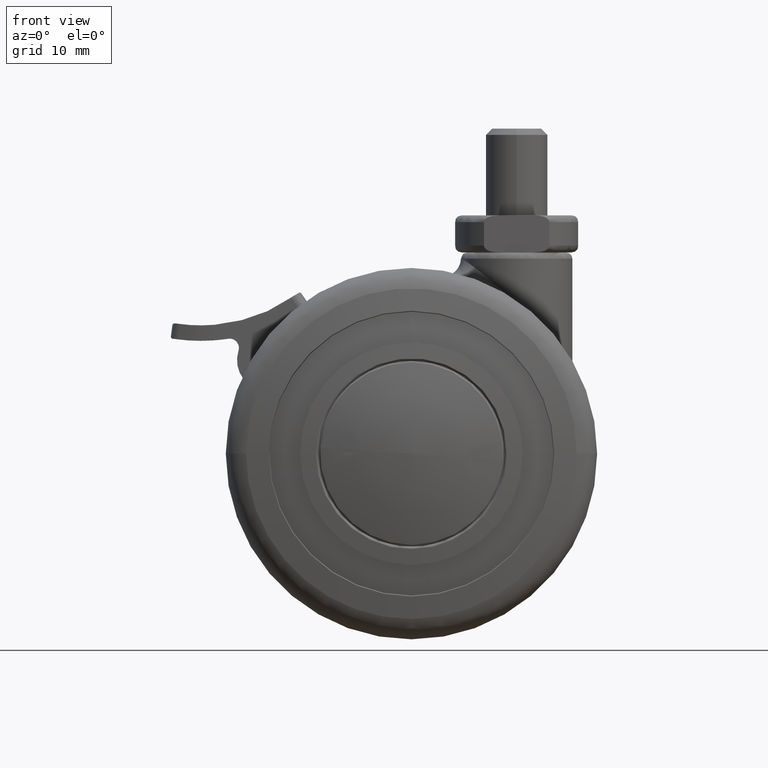
[diagram: clean part render]
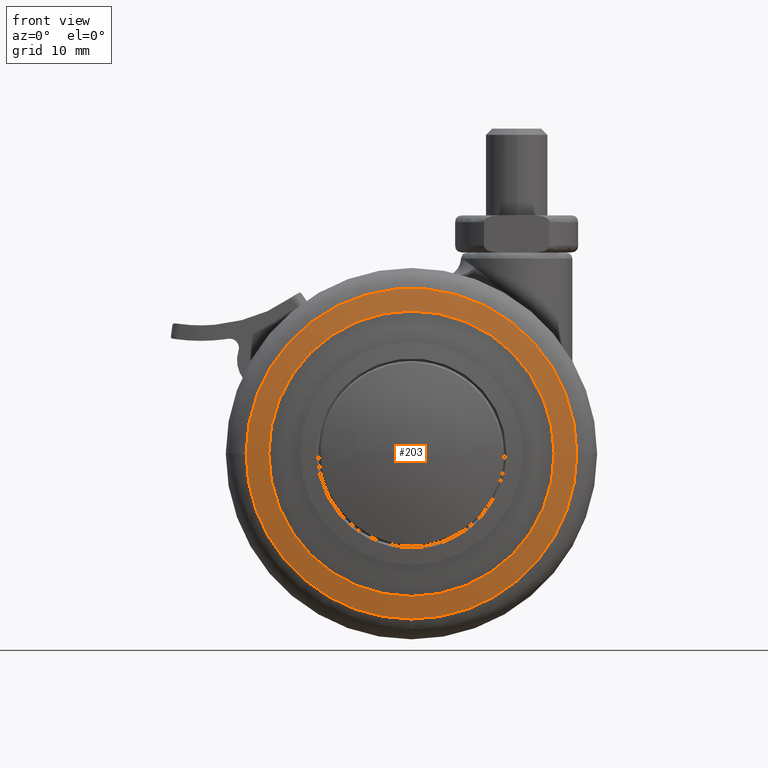
[diagram: same view with one face highlighted and labeled with its STEP entity id]
A machine part, front view. The second image highlights one B-rep face of the part: STEP entity #203.
In plain terms, the highlighted spherical surface has radius 150 mm.
Its self-contained STEP definition (entity closure, byte-faithful):
#203=ADVANCED_FACE('',(#501,#502),#500,.T.);
#500=SPHERICAL_SURFACE('',#3095,1.50000000000E+02);
#501=FACE_OUTER_BOUND('',#3096,.T.);
#502=FACE_BOUND('',#3097,.T.);
#3092=CARTESIAN_POINT('',(0.00000000000E+00,0.00000000000E+00,-1.35210000000E+02));
#3093=DIRECTION('',(-1.00000000000E+00,0.00000000000E+00,0.00000000000E+00));
#3094=DIRECTION('',(-0.00000000000E+00,-1.78082191781E-01,9.84015616223E-01));
#3095=AXIS2_PLACEMENT_3D('',#3092,#3093,#3094);
#3096=EDGE_LOOP('',(#5826,#5827,#5828));
#3097=EDGE_LOOP('',(#5829,#5830,#5831));
#5826=ORIENTED_EDGE('',*,*,#6967,.T.);
#5827=ORIENTED_EDGE('',*,*,#6968,.T.);
#5828=ORIENTED_EDGE('',*,*,#6969,.T.);
#5829=ORIENTED_EDGE('',*,*,#6970,.F.);
#5830=ORIENTED_EDGE('',*,*,#6971,.F.);
#5831=ORIENTED_EDGE('',*,*,#6972,.F.);
#6967=EDGE_CURVE('',#7723,#7724,#7725,.T.);
#6968=EDGE_CURVE('',#7724,#7731,#7732,.T.);
#6969=EDGE_CURVE('',#7731,#7723,#7738,.T.);
#6970=EDGE_CURVE('',#7744,#7745,#7746,.T.);
#6971=EDGE_CURVE('',#7752,#7744,#7753,.T.);
#6972=EDGE_CURVE('',#7745,#7752,#7759,.T.);
#7723=VERTEX_POINT('',#11478);
#7724=VERTEX_POINT('',#11479);
#7725=CIRCLE('',#11483,2.67123287671E+01);
#7731=VERTEX_POINT('',#11484);
#7732=CIRCLE('',#11488,2.67123287671E+01);
#7738=CIRCLE('',#11492,2.67123287671E+01);
#7744=VERTEX_POINT('',#11493);
#7745=VERTEX_POINT('',#11494);
#7746=CIRCLE('',#11498,2.30600000000E+01);
#7752=VERTEX_POINT('',#11499);
#7753=CIRCLE('',#11503,2.30600000000E+01);
#7759=CIRCLE('',#11507,2.30600000000E+01);
#11478=CARTESIAN_POINT('',(-1.43418453520E-15,-2.67123287671E+01,1.23923424334E+01));
#11479=CARTESIAN_POINT('',(2.67123287671E+01,-6.83950822632E-10,1.23923424334E+01));
#11480=CARTESIAN_POINT('',(0.00000000000E+00,0.00000000000E+00,1.23923424334E+01));
#11481=DIRECTION('',(-0.00000000000E+00,0.00000000000E+00,1.00000000000E+00));
#11482=DIRECTION('',(3.13691920983E-16,-1.00000000000E+00,0.00000000000E+00));
#11483=AXIS2_PLACEMENT_3D('',#11480,#11481,#11482);
#11484=CARTESIAN_POINT('',(-2.67123286233E+01,2.77215065779E-03,1.23923424334E+01));
#11485=CARTESIAN_POINT('',(0.00000000000E+00,0.00000000000E+00,1.23923424334E+01));
#11486=DIRECTION('',(-0.00000000000E+00,0.00000000000E+00,1.00000000000E+00));
#11487=DIRECTION('',(3.13691920983E-16,-1.00000000000E+00,0.00000000000E+00));
#11488=AXIS2_PLACEMENT_3D('',#11485,#11486,#11487);
#11489=CARTESIAN_POINT('',(0.00000000000E+00,0.00000000000E+00,1.23923424334E+01));
#11490=DIRECTION('',(-0.00000000000E+00,0.00000000000E+00,1.00000000000E+00));
#11491=DIRECTION('',(3.13691920983E-16,-1.00000000000E+00,0.00000000000E+00));
#11492=AXIS2_PLACEMENT_3D('',#11489,#11490,#11491);
#11493=CARTESIAN_POINT('',(2.30599998758E+01,-2.39318611887E-03,1.30068559915E+01));
#11494=CARTESIAN_POINT('',(7.05994889671E-15,2.30600000000E+01,1.30068559915E+01));
#11495=CARTESIAN_POINT('',(0.00000000000E+00,0.00000000000E+00,1.30068559915E+01));
#11496=DIRECTION('',(0.00000000000E+00,0.00000000000E+00,1.00000000000E+00));
#11497=DIRECTION('',(-6.12262731586E-17,1.00000000000E+00,0.00000000000E+00));
#11498=AXIS2_PLACEMENT_3D('',#11495,#11496,#11497);
#11499=CARTESIAN_POINT('',(-2.30600000000E+01,4.99496209898E-11,1.30068559915E+01));
#11500=CARTESIAN_POINT('',(0.00000000000E+00,0.00000000000E+00,1.30068559915E+01));
#11501=DIRECTION('',(0.00000000000E+00,0.00000000000E+00,1.00000000000E+00));
#11502=DIRECTION('',(-6.12262731586E-17,1.00000000000E+00,0.00000000000E+00));
#11503=AXIS2_PLACEMENT_3D('',#11500,#11501,#11502);
#11504=CARTESIAN_POINT('',(0.00000000000E+00,0.00000000000E+00,1.30068559915E+01));
#11505=DIRECTION('',(0.00000000000E+00,0.00000000000E+00,1.00000000000E+00));
#11506=DIRECTION('',(-6.12262731586E-17,1.00000000000E+00,0.00000000000E+00));
#11507=AXIS2_PLACEMENT_3D('',#11504,#11505,#11506);